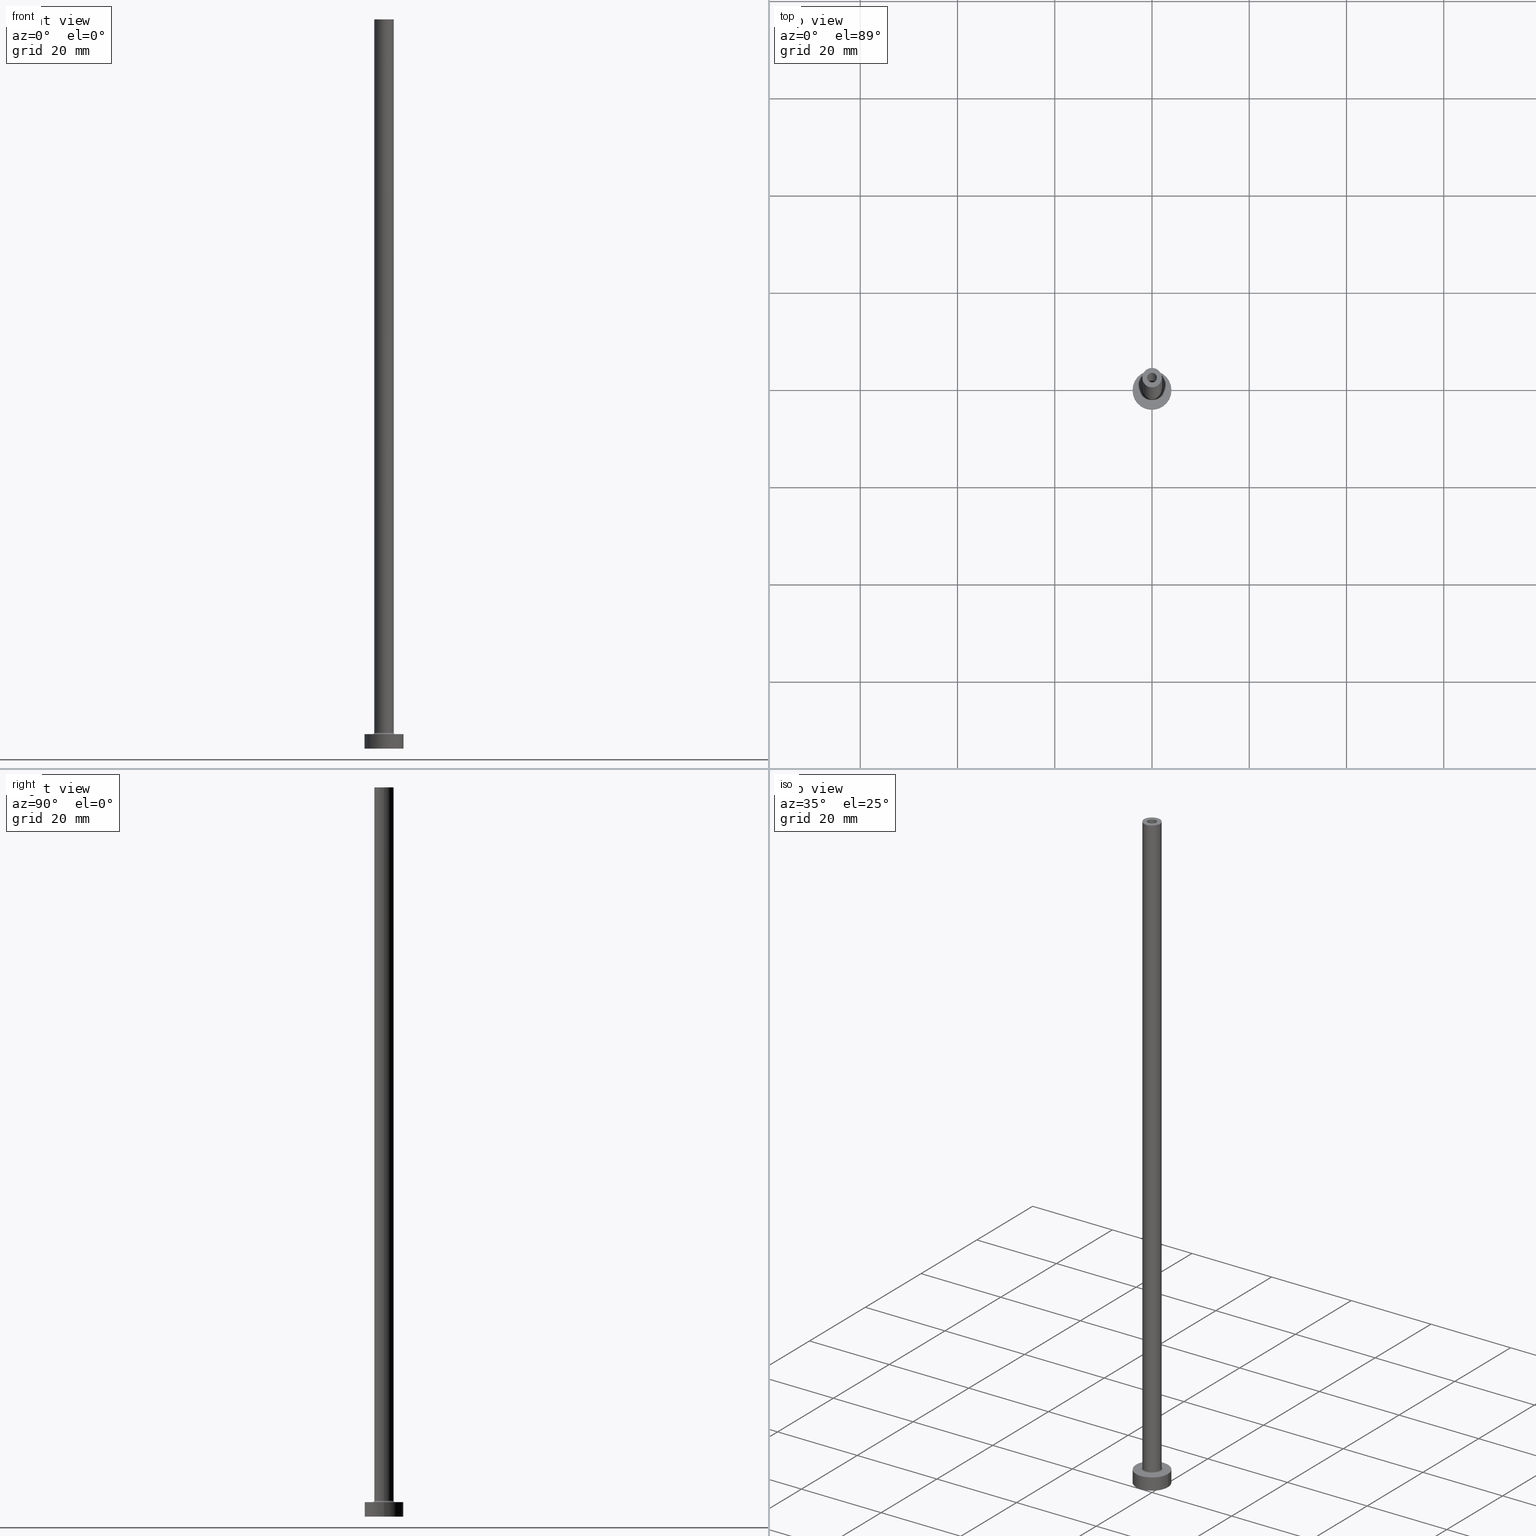
[diagram: canonical four-view strip — front | top / right | iso, engineering-drawing reading convention]
A machine part, canonical four-view strip (front | top / right | iso — engineering-drawing reading convention). The complete STEP part file that produces these views, byte-faithful:
ISO-10303-21;
HEADER;
FILE_DESCRIPTION (( 'STEP AP203' ),
    '1' );
FILE_NAME ('a53a.STEP',
    '2023-02-13T18:18:25',
    ( '' ),
    ( '' ),
    'SwSTEP 2.0',
    'SolidWorks 2019',
    '' );
FILE_SCHEMA (( 'CONFIG_CONTROL_DESIGN' ));
ENDSEC;

DATA;
#1 = TOROIDAL_SURFACE ( 'NONE', #106, 2.299999999999999822, 0.2999999999999999889 ) ;
#2 = CARTESIAN_POINT ( 'NONE',  ( -1.149999999999999911, 0.000000000000000000, 0.000000000000000000 ) ) ;
#3 = EDGE_CURVE ( 'NONE', #280, #333, #257, .T. ) ;
#4 = DIRECTION ( 'NONE',  ( 1.000000000000000000, 0.000000000000000000, 0.000000000000000000 ) ) ;
#5 = CARTESIAN_POINT ( 'NONE',  ( 0.000000000000000000, 0.000000000000000000, 118.2526911934581051 ) ) ;
#6 = CARTESIAN_POINT ( 'NONE',  ( 0.000000000000000000, 0.000000000000000000, 114.9999999999999858 ) ) ;
#7 = CIRCLE ( 'NONE', #326, 2.000000000000000000 ) ;
#8 = EDGE_CURVE ( 'NONE', #303, #279, #18, .T. ) ;
#9 = DIRECTION ( 'NONE',  ( -1.000000000000000000, 0.000000000000000000, 0.000000000000000000 ) ) ;
#10 = DIRECTION ( 'NONE',  ( -1.000000000000000000, 1.224646799147353207E-16, 0.000000000000000000 ) ) ;
#11 = EDGE_LOOP ( 'NONE', ( #33, #436, #265, #268 ) ) ;
#12 = COORDINATED_UNIVERSAL_TIME_OFFSET ( 1, 0, .AHEAD. ) ;
#13 = EDGE_CURVE ( 'NONE', #308, #143, #189, .T. ) ;
#14 = ORGANIZATION ( 'NEUR�EN�', 'NEUR�EN�', '' ) ;
#15 = FACE_BOUND ( 'NONE', #233, .T. ) ;
#16 = LOCAL_TIME ( 19, 18, 25.00000000000000000, #379 ) ;
#17 = ORIENTED_EDGE ( 'NONE', *, *, #283, .F. ) ;
#18 = CIRCLE ( 'NONE', #117, 2.000000000000000000 ) ;
#19 = PERSON_AND_ORGANIZATION ( #366, #14 ) ;
#20 = CARTESIAN_POINT ( 'NONE',  ( 0.000000000000000000, 0.000000000000000000, 0.000000000000000000 ) ) ;
#21 = ORIENTED_EDGE ( 'NONE', *, *, #400, .F. ) ;
#22 = COORDINATED_UNIVERSAL_TIME_OFFSET ( 1, 0, .AHEAD. ) ;
#23 = CARTESIAN_POINT ( 'NONE',  ( -4.000000000000000000, 0.000000000000000000, 3.000000000000000000 ) ) ;
#24 = ORIENTED_EDGE ( 'NONE', *, *, #357, .T. ) ;
#25 = PERSON_AND_ORGANIZATION ( #366, #14 ) ;
#26 = CARTESIAN_POINT ( 'NONE',  ( 0.000000000000000000, 0.000000000000000000, 0.000000000000000000 ) ) ;
#27 = ORIENTED_EDGE ( 'NONE', *, *, #13, .T. ) ;
#28 = LOCAL_TIME ( 19, 18, 25.00000000000000000, #98 ) ;
#29 = AXIS2_PLACEMENT_3D ( 'NONE', #362, #62, #410 ) ;
#30 = EDGE_CURVE ( 'NONE', #337, #182, #335, .T. ) ;
#31 = PLANE ( 'NONE',  #116 ) ;
#32 = ORIENTED_EDGE ( 'NONE', *, *, #249, .T. ) ;
#33 = ORIENTED_EDGE ( 'NONE', *, *, #228, .F. ) ;
#34 = FACE_OUTER_BOUND ( 'NONE', #416, .T. ) ;
#35 = ADVANCED_FACE ( 'NONE', ( #69 ), #277, .F. ) ;
#36 = CARTESIAN_POINT ( 'NONE',  ( 0.000000000000000000, 0.000000000000000000, 150.0000000000000000 ) ) ;
#37 = VECTOR ( 'NONE', #84, 1000.000000000000000 ) ;
#38 = ORIENTED_EDGE ( 'NONE', *, *, #255, .T. ) ;
#39 = CC_DESIGN_PERSON_AND_ORGANIZATION_ASSIGNMENT ( #19, #408, ( #305 ) ) ;
#40 = CARTESIAN_POINT ( 'NONE',  ( 4.000000000000000000, 4.898587196589412829E-16, 3.000000000000000000 ) ) ;
#41 = LINE ( 'NONE', #435, #37 ) ;
#42 = ADVANCED_FACE ( 'NONE', ( #458, #139 ), #104, .F. ) ;
#43 = APPROVAL_PERSON_ORGANIZATION ( #192, #373, #132 ) ;
#44 =( LENGTH_UNIT ( ) NAMED_UNIT ( * ) SI_UNIT ( .MILLI., .METRE. ) );
#45 = DIRECTION ( 'NONE',  ( 0.000000000000000000, 0.000000000000000000, 1.000000000000000000 ) ) ;
#46 = DIRECTION ( 'NONE',  ( -0.000000000000000000, -0.000000000000000000, -1.000000000000000000 ) ) ;
#47 = DIRECTION ( 'NONE',  ( 0.000000000000000000, 0.000000000000000000, 1.000000000000000000 ) ) ;
#48 = ADVANCED_FACE ( 'NONE', ( #114 ), #394, .F. ) ;
#49 = DIRECTION ( 'NONE',  ( 1.000000000000000000, 0.000000000000000000, 0.000000000000000000 ) ) ;
#50 = AXIS2_PLACEMENT_3D ( 'NONE', #327, #441, #9 ) ;
#51 = CARTESIAN_POINT ( 'NONE',  ( 4.000000000000000000, 4.898587196589412829E-16, 3.000000000000000000 ) ) ;
#52 = EDGE_LOOP ( 'NONE', ( #451, #241, #137, #134 ) ) ;
#53 = CARTESIAN_POINT ( 'NONE',  ( 0.000000000000000000, 0.000000000000000000, 3.000000000000000000 ) ) ;
#54 = EDGE_LOOP ( 'NONE', ( #447, #164, #27, #168 ) ) ;
#55 = PERSON_AND_ORGANIZATION ( #366, #14 ) ;
#56 = EDGE_CURVE ( 'NONE', #337, #88, #41, .T. ) ;
#57 = PERSON_AND_ORGANIZATION_ROLE ( 'design_owner' ) ;
#58 = AXIS2_PLACEMENT_3D ( 'NONE', #53, #360, #197 ) ;
#59 = DIRECTION ( 'NONE',  ( 0.000000000000000000, 0.000000000000000000, 1.000000000000000000 ) ) ;
#60 = ORIENTED_EDGE ( 'NONE', *, *, #224, .T. ) ;
#61 = AXIS2_PLACEMENT_3D ( 'NONE', #5, #352, #77 ) ;
#62 = DIRECTION ( 'NONE',  ( 0.000000000000000000, 0.000000000000000000, 1.000000000000000000 ) ) ;
#63 = ORIENTED_EDGE ( 'NONE', *, *, #72, .T. ) ;
#64 = DIRECTION ( 'NONE',  ( 0.000000000000000000, 0.000000000000000000, 1.000000000000000000 ) ) ;
#65 = ORIENTED_EDGE ( 'NONE', *, *, #283, .T. ) ;
#66 = EDGE_CURVE ( 'NONE', #279, #96, #81, .T. ) ;
#67 = CALENDAR_DATE ( 2023, 13, 2 ) ;
#68 = CYLINDRICAL_SURFACE ( 'NONE', #448, 2.000000000000000000 ) ;
#69 = FACE_OUTER_BOUND ( 'NONE', #11, .T. ) ;
#70 = AXIS2_PLACEMENT_3D ( 'NONE', #292, #302, #336 ) ;
#71 = EDGE_LOOP ( 'NONE', ( #386, #24, #250, #272 ) ) ;
#72 = EDGE_CURVE ( 'NONE', #131, #140, #247, .T. ) ;
#73 = PRODUCT_DEFINITION_SHAPE ( 'NONE', 'NONE',  #459 ) ;
#74 = CC_DESIGN_PERSON_AND_ORGANIZATION_ASSIGNMENT ( #25, #263, ( #320 ) ) ;
#75 = DIRECTION ( 'NONE',  ( 0.000000000000000000, 0.000000000000000000, 1.000000000000000000 ) ) ;
#76 = ORIENTED_EDGE ( 'NONE', *, *, #319, .T. ) ;
#77 = DIRECTION ( 'NONE',  ( -1.000000000000000000, 0.000000000000000000, 0.000000000000000000 ) ) ;
#78 = DIRECTION ( 'NONE',  ( 0.000000000000000000, 0.000000000000000000, 1.000000000000000000 ) ) ;
#79 = EDGE_CURVE ( 'NONE', #88, #411, #152, .T. ) ;
#80 = DIRECTION ( 'NONE',  ( 1.000000000000000000, 0.000000000000000000, 0.000000000000000000 ) ) ;
#81 = CIRCLE ( 'NONE', #270, 0.2999999999999999334 ) ;
#82 = DIRECTION ( 'NONE',  ( 1.000000000000000000, 0.000000000000000000, 0.000000000000000000 ) ) ;
#83 = CC_DESIGN_PERSON_AND_ORGANIZATION_ASSIGNMENT ( #312, #57, ( #242 ) ) ;
#84 = DIRECTION ( 'NONE',  ( 0.000000000000000000, 0.000000000000000000, -1.000000000000000000 ) ) ;
#85 = DIRECTION ( 'NONE',  ( -0.000000000000000000, -0.000000000000000000, -1.000000000000000000 ) ) ;
#86 = CC_DESIGN_APPROVAL ( #396, ( #305 ) ) ;
#87 = CARTESIAN_POINT ( 'NONE',  ( 0.000000000000000000, 0.000000000000000000, 3.000000000000000000 ) ) ;
#88 = VERTEX_POINT ( 'NONE', #391 ) ;
#89 = FACE_OUTER_BOUND ( 'NONE', #54, .T. ) ;
#90 = EDGE_LOOP ( 'NONE', ( #142, #93, #346, #440 ) ) ;
#91 = EDGE_CURVE ( 'NONE', #411, #88, #97, .T. ) ;
#92 = CARTESIAN_POINT ( 'NONE',  ( 0.000000000000000000, 0.000000000000000000, 3.000000000000000000 ) ) ;
#93 = ORIENTED_EDGE ( 'NONE', *, *, #255, .F. ) ;
#94 = SHAPE_DEFINITION_REPRESENTATION ( #73, #309 ) ;
#95 = CIRCLE ( 'NONE', #371, 4.000000000000000000 ) ;
#96 = VERTEX_POINT ( 'NONE', #256 ) ;
#97 = CIRCLE ( 'NONE', #344, 1.000000000000000000 ) ;
#98 = COORDINATED_UNIVERSAL_TIME_OFFSET ( 1, 0, .AHEAD. ) ;
#99 = COORDINATED_UNIVERSAL_TIME_OFFSET ( 1, 0, .AHEAD. ) ;
#100 = CARTESIAN_POINT ( 'NONE',  ( -1.000000000000000000, 0.000000000000000000, 114.9999999999999858 ) ) ;
#101 = EDGE_LOOP ( 'NONE', ( #274, #339, #158, #213 ) ) ;
#102 = DIRECTION ( 'NONE',  ( 0.000000000000000000, 0.000000000000000000, 1.000000000000000000 ) ) ;
#103 = CARTESIAN_POINT ( 'NONE',  ( -1.000000000000000000, 0.000000000000000000, 150.0000000000000000 ) ) ;
#104 = PLANE ( 'NONE',  #361 ) ;
#105 = EDGE_CURVE ( 'NONE', #348, #367, #217, .T. ) ;
#106 = AXIS2_PLACEMENT_3D ( 'NONE', #193, #47, #4 ) ;
#107 = EDGE_LOOP ( 'NONE', ( #423, #300 ) ) ;
#108 = APPLICATION_CONTEXT ( 'configuration controlled 3d designs of mechanical parts and assemblies' ) ;
#109 = CC_DESIGN_PERSON_AND_ORGANIZATION_ASSIGNMENT ( #341, #170, ( #320 ) ) ;
#110 = CARTESIAN_POINT ( 'NONE',  ( 0.000000000000000000, 0.000000000000000000, 150.0000000000000000 ) ) ;
#111 = ORIENTED_EDGE ( 'NONE', *, *, #91, .F. ) ;
#112 = AXIS2_PLACEMENT_3D ( 'NONE', #87, #231, #406 ) ;
#113 = DIRECTION ( 'NONE',  ( 0.000000000000000000, 0.000000000000000000, -1.000000000000000000 ) ) ;
#114 = FACE_OUTER_BOUND ( 'NONE', #172, .T. ) ;
#115 = ADVANCED_FACE ( 'NONE', ( #220, #322 ), #226, .T. ) ;
#116 = AXIS2_PLACEMENT_3D ( 'NONE', #342, #64, #180 ) ;
#117 = AXIS2_PLACEMENT_3D ( 'NONE', #428, #102, #317 ) ;
#118 = DIRECTION ( 'NONE',  ( 1.000000000000000000, 0.000000000000000000, -0.000000000000000000 ) ) ;
#119 = APPROVAL ( #330, 'NEUR�EN�' ) ;
#120 = DIRECTION ( 'NONE',  ( 1.000000000000000000, 0.000000000000000000, 0.000000000000000000 ) ) ;
#121 = LINE ( 'NONE', #23, #195 ) ;
#122 = ORIENTED_EDGE ( 'NONE', *, *, #304, .T. ) ;
#123 = DIRECTION ( 'NONE',  ( 1.000000000000000000, 0.000000000000000000, -0.000000000000000000 ) ) ;
#124 = AXIS2_PLACEMENT_3D ( 'NONE', #36, #185, #426 ) ;
#125 = EDGE_CURVE ( 'NONE', #236, #155, #421, .T. ) ;
#126 = ORIENTED_EDGE ( 'NONE', *, *, #389, .F. ) ;
#127 = DATE_TIME_ROLE ( 'classification_date' ) ;
#128 = DIRECTION ( 'NONE',  ( 1.000000000000000000, 0.000000000000000000, 0.000000000000000000 ) ) ;
#129 = ORIENTED_EDGE ( 'NONE', *, *, #72, .F. ) ;
#130 = CARTESIAN_POINT ( 'NONE',  ( -2.000000000000000000, 0.000000000000000000, 3.299999999999997158 ) ) ;
#131 = VERTEX_POINT ( 'NONE', #40 ) ;
#132 = APPROVAL_ROLE ( '' ) ;
#133 = CARTESIAN_POINT ( 'NONE',  ( 2.000000000000000000, 2.449293598294706414E-16, 150.0000000000000000 ) ) ;
#134 = ORIENTED_EDGE ( 'NONE', *, *, #8, .T. ) ;
#135 = APPROVAL_DATE_TIME ( #209, #373 ) ;
#136 = DIRECTION ( 'NONE',  ( 1.000000000000000000, 0.000000000000000000, 0.000000000000000000 ) ) ;
#137 = ORIENTED_EDGE ( 'NONE', *, *, #409, .T. ) ;
#138 = FACE_OUTER_BOUND ( 'NONE', #276, .T. ) ;
#139 = FACE_OUTER_BOUND ( 'NONE', #208, .T. ) ;
#140 = VERTEX_POINT ( 'NONE', #153 ) ;
#141 = CARTESIAN_POINT ( 'NONE',  ( 0.000000000000000000, 0.000000000000000000, 118.2526911934581051 ) ) ;
#142 = ORIENTED_EDGE ( 'NONE', *, *, #259, .F. ) ;
#143 = VERTEX_POINT ( 'NONE', #2 ) ;
#144 = CC_DESIGN_DATE_AND_TIME_ASSIGNMENT ( #442, #198, ( #459 ) ) ;
#145 = DIRECTION ( 'NONE',  ( 0.000000000000000000, 0.000000000000000000, 1.000000000000000000 ) ) ;
#146 = CIRCLE ( 'NONE', #223, 1.149999999999999911 ) ;
#147 = DIRECTION ( 'NONE',  ( -1.000000000000000000, 0.000000000000000000, 0.000000000000000000 ) ) ;
#148 = DIRECTION ( 'NONE',  ( 0.000000000000000000, 0.000000000000000000, 1.000000000000000000 ) ) ;
#149 = ADVANCED_FACE ( 'NONE', ( #225 ), #1, .F. ) ;
#150 = CARTESIAN_POINT ( 'NONE',  ( 0.000000000000000000, 0.000000000000000000, 0.000000000000000000 ) ) ;
#151 = VECTOR ( 'NONE', #262, 1000.000000000000000 ) ;
#152 = CIRCLE ( 'NONE', #184, 1.000000000000000000 ) ;
#153 = CARTESIAN_POINT ( 'NONE',  ( -4.000000000000000000, 0.000000000000000000, 3.000000000000000000 ) ) ;
#154 = FACE_OUTER_BOUND ( 'NONE', #200, .T. ) ;
#155 = VERTEX_POINT ( 'NONE', #359 ) ;
#156 = EDGE_CURVE ( 'NONE', #279, #303, #7, .T. ) ;
#157 = DIRECTION ( 'NONE',  ( 1.000000000000000000, 0.000000000000000000, 0.000000000000000000 ) ) ;
#158 = ORIENTED_EDGE ( 'NONE', *, *, #304, .F. ) ;
#159 = CALENDAR_DATE ( 2023, 13, 2 ) ;
#160 = AXIS2_PLACEMENT_3D ( 'NONE', #218, #78, #432 ) ;
#161 = AXIS2_PLACEMENT_3D ( 'NONE', #20, #295, #128 ) ;
#162 = DIRECTION ( 'NONE',  ( 1.000000000000000000, 0.000000000000000000, 0.000000000000000000 ) ) ;
#163 = AXIS2_PLACEMENT_3D ( 'NONE', #398, #59, #162 ) ;
#164 = ORIENTED_EDGE ( 'NONE', *, *, #389, .T. ) ;
#165 = APPROVAL_STATUS ( 'not_yet_approved' ) ;
#166 = APPLICATION_PROTOCOL_DEFINITION ( 'international standard', 'config_control_design', 1994, #108 ) ;
#167 = CYLINDRICAL_SURFACE ( 'NONE', #112, 4.000000000000000000 ) ;
#168 = ORIENTED_EDGE ( 'NONE', *, *, #331, .F. ) ;
#169 = ADVANCED_FACE ( 'NONE', ( #430 ), #187, .T. ) ;
#170 = PERSON_AND_ORGANIZATION_ROLE ( 'creator' ) ;
#171 = CARTESIAN_POINT ( 'NONE',  ( 0.000000000000000000, 0.000000000000000000, 0.000000000000000000 ) ) ;
#172 = EDGE_LOOP ( 'NONE', ( #126, #65, #455, #60 ) ) ;
#173 = DATE_AND_TIME ( #159, #222 ) ;
#174 = VECTOR ( 'NONE', #457, 1000.000000000000000 ) ;
#175 = CARTESIAN_POINT ( 'NONE',  ( -2.299999999999999822, 2.816687638038912056E-16, 2.999999999999998668 ) ) ;
#176 = EDGE_LOOP ( 'NONE', ( #122, #76 ) ) ;
#177 = CIRCLE ( 'NONE', #163, 2.000000000000000000 ) ;
#178 = DIRECTION ( 'NONE',  ( -0.000000000000000000, -0.000000000000000000, -1.000000000000000000 ) ) ;
#179 = ORIENTED_EDGE ( 'NONE', *, *, #79, .F. ) ;
#180 = DIRECTION ( 'NONE',  ( 1.000000000000000000, 0.000000000000000000, -0.000000000000000000 ) ) ;
#181 = LOCAL_TIME ( 19, 18, 25.00000000000000000, #99 ) ;
#182 = VERTEX_POINT ( 'NONE', #284 ) ;
#183 = MANIFOLD_SOLID_BREP ( 'Odebrat vysunut�m4', #395 ) ;
#184 = AXIS2_PLACEMENT_3D ( 'NONE', #6, #45, #80 ) ;
#185 = DIRECTION ( 'NONE',  ( 0.000000000000000000, 0.000000000000000000, 1.000000000000000000 ) ) ;
#186 = CC_DESIGN_PERSON_AND_ORGANIZATION_ASSIGNMENT ( #364, #445, ( #459 ) ) ;
#187 = CYLINDRICAL_SURFACE ( 'NONE', #381, 4.000000000000000000 ) ;
#188 = CARTESIAN_POINT ( 'NONE',  ( 0.000000000000000000, 0.000000000000000000, 114.9999999999999858 ) ) ;
#189 = CIRCLE ( 'NONE', #456, 1.149999999999999911 ) ;
#190 = ADVANCED_FACE ( 'NONE', ( #358 ), #191, .F. ) ;
#191 = CYLINDRICAL_SURFACE ( 'NONE', #402, 1.000000000000000000 ) ;
#192 = PERSON_AND_ORGANIZATION ( #366, #14 ) ;
#193 = CARTESIAN_POINT ( 'NONE',  ( 0.000000000000000000, 0.000000000000000000, 3.299999999999997158 ) ) ;
#194 = VECTOR ( 'NONE', #207, 1000.000000000000000 ) ;
#195 = VECTOR ( 'NONE', #296, 1000.000000000000000 ) ;
#196 = DIRECTION ( 'NONE',  ( -0.000000000000000000, -0.000000000000000000, -1.000000000000000000 ) ) ;
#197 = DIRECTION ( 'NONE',  ( 1.000000000000000000, 0.000000000000000000, 0.000000000000000000 ) ) ;
#198 = DATE_TIME_ROLE ( 'creation_date' ) ;
#199 = DIRECTION ( 'NONE',  ( -0.000000000000000000, -0.000000000000000000, -1.000000000000000000 ) ) ;
#200 = EDGE_LOOP ( 'NONE', ( #291, #370 ) ) ;
#201 = AXIS2_PLACEMENT_3D ( 'NONE', #251, #113, #318 ) ;
#202 = EDGE_CURVE ( 'NONE', #140, #155, #121, .T. ) ;
#203 = CARTESIAN_POINT ( 'NONE',  ( 2.000000000000000000, 2.449293598294706414E-16, 150.0000000000000000 ) ) ;
#204 = CARTESIAN_POINT ( 'NONE',  ( 0.000000000000000000, 0.000000000000000000, 150.0000000000000000 ) ) ;
#205 = PRODUCT_RELATED_PRODUCT_CATEGORY ( 'detail', '', ( #242 ) ) ;
#206 = ORIENTED_EDGE ( 'NONE', *, *, #105, .F. ) ;
#207 = DIRECTION ( 'NONE',  ( -0.000000000000000000, -0.000000000000000000, -1.000000000000000000 ) ) ;
#208 = EDGE_LOOP ( 'NONE', ( #21, #407 ) ) ;
#209 = DATE_AND_TIME ( #334, #181 ) ;
#210 = LOCAL_TIME ( 19, 18, 25.00000000000000000, #22 ) ;
#211 = ORIENTED_EDGE ( 'NONE', *, *, #427, .T. ) ;
#212 = VECTOR ( 'NONE', #199, 1000.000000000000000 ) ;
#213 = ORIENTED_EDGE ( 'NONE', *, *, #66, .F. ) ;
#214 = ORIENTED_EDGE ( 'NONE', *, *, #30, .T. ) ;
#215 = CARTESIAN_POINT ( 'NONE',  ( 1.149999999999999911, 1.408343819019456028E-16, 114.9999999999999858 ) ) ;
#216 = ORIENTED_EDGE ( 'NONE', *, *, #259, .T. ) ;
#217 = CIRCLE ( 'NONE', #351, 1.149999999999999911 ) ;
#218 = CARTESIAN_POINT ( 'NONE',  ( 0.000000000000000000, 0.000000000000000000, 3.000000000000000000 ) ) ;
#219 =( NAMED_UNIT ( * ) SI_UNIT ( $, .STERADIAN. ) SOLID_ANGLE_UNIT ( ) );
#220 = FACE_BOUND ( 'NONE', #176, .T. ) ;
#221 = CIRCLE ( 'NONE', #58, 2.299999999999999822 ) ;
#222 = LOCAL_TIME ( 19, 18, 25.00000000000000000, #12 ) ;
#223 = AXIS2_PLACEMENT_3D ( 'NONE', #171, #196, #332 ) ;
#224 = EDGE_CURVE ( 'NONE', #143, #308, #146, .T. ) ;
#225 = FACE_OUTER_BOUND ( 'NONE', #101, .T. ) ;
#226 = PLANE ( 'NONE',  #160 ) ;
#227 = DIRECTION ( 'NONE',  ( 0.000000000000000000, 0.000000000000000000, 1.000000000000000000 ) ) ;
#228 = EDGE_CURVE ( 'NONE', #303, #382, #356, .T. ) ;
#229 = AXIS2_PLACEMENT_3D ( 'NONE', #141, #278, #377 ) ;
#230 = CIRCLE ( 'NONE', #29, 4.000000000000000000 ) ;
#231 = DIRECTION ( 'NONE',  ( -0.000000000000000000, -0.000000000000000000, -1.000000000000000000 ) ) ;
#232 = ORIENTED_EDGE ( 'NONE', *, *, #79, .T. ) ;
#233 = EDGE_LOOP ( 'NONE', ( #420, #378 ) ) ;
#234 = ADVANCED_FACE ( 'NONE', ( #260 ), #328, .T. ) ;
#235 = PLANE ( 'NONE',  #439 ) ;
#236 = VERTEX_POINT ( 'NONE', #443 ) ;
#237 = DATE_AND_TIME ( #67, #16 ) ;
#238 = APPLICATION_PROTOCOL_DEFINITION ( 'international standard', 'config_control_design', 1994, #434 ) ;
#239 = DIRECTION ( 'NONE',  ( 1.224646799147353207E-16, 1.000000000000000000, -0.000000000000000000 ) ) ;
#240 = AXIS2_PLACEMENT_3D ( 'NONE', #110, #380, #248 ) ;
#241 = ORIENTED_EDGE ( 'NONE', *, *, #3, .F. ) ;
#242 = PRODUCT ( 'a53a', 'a53a', '', ( #437 ) ) ;
#243 = CARTESIAN_POINT ( 'NONE',  ( 0.000000000000000000, 0.000000000000000000, 0.000000000000000000 ) ) ;
#244 = EDGE_CURVE ( 'NONE', #333, #280, #177, .T. ) ;
#245 =( GEOMETRIC_REPRESENTATION_CONTEXT ( 3 ) GLOBAL_UNCERTAINTY_ASSIGNED_CONTEXT ( ( #388 ) ) GLOBAL_UNIT_ASSIGNED_CONTEXT ( ( #44, #253, #219 ) ) REPRESENTATION_CONTEXT ( 'NONE', 'WORKASPACE' ) );
#246 = CARTESIAN_POINT ( 'NONE',  ( 0.000000000000000000, 0.000000000000000000, 0.000000000000000000 ) ) ;
#247 = CIRCLE ( 'NONE', #288, 4.000000000000000000 ) ;
#248 = DIRECTION ( 'NONE',  ( 1.000000000000000000, 0.000000000000000000, 0.000000000000000000 ) ) ;
#249 = EDGE_CURVE ( 'NONE', #182, #337, #306, .T. ) ;
#250 = ORIENTED_EDGE ( 'NONE', *, *, #156, .T. ) ;
#251 = CARTESIAN_POINT ( 'NONE',  ( 0.000000000000000000, 0.000000000000000000, 150.0000000000000000 ) ) ;
#252 = DIRECTION ( 'NONE',  ( 0.000000000000000000, 0.000000000000000000, 1.000000000000000000 ) ) ;
#253 =( NAMED_UNIT ( * ) PLANE_ANGLE_UNIT ( ) SI_UNIT ( $, .RADIAN. ) );
#254 = CARTESIAN_POINT ( 'NONE',  ( 0.000000000000000000, 0.000000000000000000, 3.000000000000000000 ) ) ;
#255 = EDGE_CURVE ( 'NONE', #140, #131, #230, .T. ) ;
#256 = CARTESIAN_POINT ( 'NONE',  ( 2.299999999999999822, 0.000000000000000000, 2.999999999999998668 ) ) ;
#257 = CIRCLE ( 'NONE', #124, 2.000000000000000000 ) ;
#258 = DIRECTION ( 'NONE',  ( 0.000000000000000000, 0.000000000000000000, 1.000000000000000000 ) ) ;
#259 = EDGE_CURVE ( 'NONE', #131, #236, #365, .T. ) ;
#260 = FACE_OUTER_BOUND ( 'NONE', #71, .T. ) ;
#261 = CIRCLE ( 'NONE', #70, 1.149999999999999911 ) ;
#262 = DIRECTION ( 'NONE',  ( 0.000000000000000000, 0.000000000000000000, -1.000000000000000000 ) ) ;
#263 = PERSON_AND_ORGANIZATION_ROLE ( 'design_supplier' ) ;
#264 = FACE_OUTER_BOUND ( 'NONE', #329, .T. ) ;
#265 = ORIENTED_EDGE ( 'NONE', *, *, #66, .T. ) ;
#266 = PERSON_AND_ORGANIZATION ( #366, #14 ) ;
#267 = CYLINDRICAL_SURFACE ( 'NONE', #229, 1.149999999999999911 ) ;
#268 = ORIENTED_EDGE ( 'NONE', *, *, #319, .F. ) ;
#269 = DATE_AND_TIME ( #294, #28 ) ;
#270 = AXIS2_PLACEMENT_3D ( 'NONE', #431, #353, #285 ) ;
#271 = SECURITY_CLASSIFICATION_LEVEL ( 'unclassified' ) ;
#272 = ORIENTED_EDGE ( 'NONE', *, *, #409, .F. ) ;
#273 = CYLINDRICAL_SURFACE ( 'NONE', #201, 1.000000000000000000 ) ;
#274 = ORIENTED_EDGE ( 'NONE', *, *, #8, .F. ) ;
#275 = CC_DESIGN_SECURITY_CLASSIFICATION ( #305, ( #320 ) ) ;
#276 = EDGE_LOOP ( 'NONE', ( #32, #298, #111, #418 ) ) ;
#277 = TOROIDAL_SURFACE ( 'NONE', #372, 2.299999999999999822, 0.2999999999999999889 ) ;
#278 = DIRECTION ( 'NONE',  ( 0.000000000000000000, 0.000000000000000000, -1.000000000000000000 ) ) ;
#279 = VERTEX_POINT ( 'NONE', #399 ) ;
#280 = VERTEX_POINT ( 'NONE', #290 ) ;
#281 = APPROVAL_PERSON_ORGANIZATION ( #266, #396, #376 ) ;
#282 = CARTESIAN_POINT ( 'NONE',  ( 0.000000000000000000, 0.000000000000000000, 3.299999999999997158 ) ) ;
#283 = EDGE_CURVE ( 'NONE', #367, #348, #261, .T. ) ;
#284 = CARTESIAN_POINT ( 'NONE',  ( -1.000000000000000000, 0.000000000000000000, 150.0000000000000000 ) ) ;
#285 = DIRECTION ( 'NONE',  ( 0.000000000000000000, 0.000000000000000000, -1.000000000000000000 ) ) ;
#286 = DIRECTION ( 'NONE',  ( 1.000000000000000000, 0.000000000000000000, 0.000000000000000000 ) ) ;
#287 = CC_DESIGN_APPROVAL ( #119, ( #320 ) ) ;
#288 = AXIS2_PLACEMENT_3D ( 'NONE', #254, #258, #120 ) ;
#289 = DIRECTION ( 'NONE',  ( -1.000000000000000000, 0.000000000000000000, 0.000000000000000000 ) ) ;
#290 = CARTESIAN_POINT ( 'NONE',  ( -2.000000000000000000, 0.000000000000000000, 150.0000000000000000 ) ) ;
#291 = ORIENTED_EDGE ( 'NONE', *, *, #3, .T. ) ;
#292 = CARTESIAN_POINT ( 'NONE',  ( 0.000000000000000000, 0.000000000000000000, 114.9999999999999858 ) ) ;
#293 = CC_DESIGN_APPROVAL ( #373, ( #459 ) ) ;
#294 = CALENDAR_DATE ( 2023, 13, 2 ) ;
#295 = DIRECTION ( 'NONE',  ( 0.000000000000000000, 0.000000000000000000, 1.000000000000000000 ) ) ;
#296 = DIRECTION ( 'NONE',  ( -0.000000000000000000, -0.000000000000000000, -1.000000000000000000 ) ) ;
#297 = ADVANCED_FACE ( 'NONE', ( #264 ), #167, .T. ) ;
#298 = ORIENTED_EDGE ( 'NONE', *, *, #56, .T. ) ;
#299 = CARTESIAN_POINT ( 'NONE',  ( -1.149999999999999911, 0.000000000000000000, 118.2526911934581051 ) ) ;
#300 = ORIENTED_EDGE ( 'NONE', *, *, #13, .F. ) ;
#301 = APPROVAL_DATE_TIME ( #173, #119 ) ;
#302 = DIRECTION ( 'NONE',  ( 0.000000000000000000, 0.000000000000000000, 1.000000000000000000 ) ) ;
#303 = VERTEX_POINT ( 'NONE', #130 ) ;
#304 = EDGE_CURVE ( 'NONE', #96, #382, #221, .T. ) ;
#305 = SECURITY_CLASSIFICATION ( '', '', #271 ) ;
#306 = CIRCLE ( 'NONE', #429, 1.000000000000000000 ) ;
#307 = LINE ( 'NONE', #133, #194 ) ;
#308 = VERTEX_POINT ( 'NONE', #446 ) ;
#309 = ADVANCED_BREP_SHAPE_REPRESENTATION ( 'a53a', ( #183, #161 ), #245 ) ;
#310 = LINE ( 'NONE', #103, #354 ) ;
#311 = DIRECTION ( 'NONE',  ( 0.000000000000000000, 0.000000000000000000, 1.000000000000000000 ) ) ;
#312 = PERSON_AND_ORGANIZATION ( #366, #14 ) ;
#313 = CIRCLE ( 'NONE', #387, 2.299999999999999822 ) ;
#314 = LINE ( 'NONE', #349, #412 ) ;
#315 = DIRECTION ( 'NONE',  ( 1.000000000000000000, 0.000000000000000000, 0.000000000000000000 ) ) ;
#316 = CARTESIAN_POINT ( 'NONE',  ( 1.149999999999999911, 1.408343819019456028E-16, 118.2526911934581051 ) ) ;
#317 = DIRECTION ( 'NONE',  ( 1.000000000000000000, 0.000000000000000000, 0.000000000000000000 ) ) ;
#318 = DIRECTION ( 'NONE',  ( -1.000000000000000000, 0.000000000000000000, 0.000000000000000000 ) ) ;
#319 = EDGE_CURVE ( 'NONE', #382, #96, #313, .T. ) ;
#320 = PRODUCT_DEFINITION_FORMATION_WITH_SPECIFIED_SOURCE ( 'LIBOVOLN�', '', #242, .NOT_KNOWN. ) ;
#321 = DIRECTION ( 'NONE',  ( 1.000000000000000000, 0.000000000000000000, 0.000000000000000000 ) ) ;
#322 = FACE_OUTER_BOUND ( 'NONE', #363, .T. ) ;
#323 = CARTESIAN_POINT ( 'NONE',  ( 0.000000000000000000, 0.000000000000000000, 150.0000000000000000 ) ) ;
#324 = ADVANCED_FACE ( 'NONE', ( #15, #154 ), #235, .T. ) ;
#325 = APPROVAL_STATUS ( 'not_yet_approved' ) ;
#326 = AXIS2_PLACEMENT_3D ( 'NONE', #282, #148, #286 ) ;
#327 = CARTESIAN_POINT ( 'NONE',  ( 0.000000000000000000, 0.000000000000000000, 150.0000000000000000 ) ) ;
#328 = CYLINDRICAL_SURFACE ( 'NONE', #50, 2.000000000000000000 ) ;
#329 = EDGE_LOOP ( 'NONE', ( #129, #216, #404, #343 ) ) ;
#330 = APPROVAL_STATUS ( 'not_yet_approved' ) ;
#331 = EDGE_CURVE ( 'NONE', #348, #143, #369, .T. ) ;
#332 = DIRECTION ( 'NONE',  ( 1.000000000000000000, 0.000000000000000000, 0.000000000000000000 ) ) ;
#333 = VERTEX_POINT ( 'NONE', #203 ) ;
#334 = CALENDAR_DATE ( 2023, 13, 2 ) ;
#335 = CIRCLE ( 'NONE', #240, 1.000000000000000000 ) ;
#336 = DIRECTION ( 'NONE',  ( 1.000000000000000000, 0.000000000000000000, 0.000000000000000000 ) ) ;
#337 = VERTEX_POINT ( 'NONE', #403 ) ;
#338 = CARTESIAN_POINT ( 'NONE',  ( -2.299999999999999822, 2.816687638038912056E-16, 3.299999999999997158 ) ) ;
#339 = ORIENTED_EDGE ( 'NONE', *, *, #228, .T. ) ;
#340 = ADVANCED_FACE ( 'NONE', ( #89 ), #267, .F. ) ;
#341 = PERSON_AND_ORGANIZATION ( #366, #14 ) ;
#342 = CARTESIAN_POINT ( 'NONE',  ( 0.000000000000000000, 0.000000000000000000, 114.9999999999999858 ) ) ;
#343 = ORIENTED_EDGE ( 'NONE', *, *, #202, .F. ) ;
#344 = AXIS2_PLACEMENT_3D ( 'NONE', #188, #390, #355 ) ;
#345 = CARTESIAN_POINT ( 'NONE',  ( 0.000000000000000000, 0.000000000000000000, 3.299999999999997158 ) ) ;
#346 = ORIENTED_EDGE ( 'NONE', *, *, #202, .T. ) ;
#347 = DIRECTION ( 'NONE',  ( -1.000000000000000000, 0.000000000000000000, 0.000000000000000000 ) ) ;
#348 = VERTEX_POINT ( 'NONE', #425 ) ;
#349 = CARTESIAN_POINT ( 'NONE',  ( -2.000000000000000000, 0.000000000000000000, 150.0000000000000000 ) ) ;
#350 = EDGE_LOOP ( 'NONE', ( #444, #214, #211, #179 ) ) ;
#351 = AXIS2_PLACEMENT_3D ( 'NONE', #397, #392, #321 ) ;
#352 = DIRECTION ( 'NONE',  ( 0.000000000000000000, 0.000000000000000000, -1.000000000000000000 ) ) ;
#353 = DIRECTION ( 'NONE',  ( 0.000000000000000000, -1.000000000000000000, 0.000000000000000000 ) ) ;
#354 = VECTOR ( 'NONE', #453, 1000.000000000000000 ) ;
#355 = DIRECTION ( 'NONE',  ( 1.000000000000000000, 0.000000000000000000, 0.000000000000000000 ) ) ;
#356 = CIRCLE ( 'NONE', #449, 0.2999999999999999334 ) ;
#357 = EDGE_CURVE ( 'NONE', #333, #279, #307, .T. ) ;
#358 = FACE_OUTER_BOUND ( 'NONE', #350, .T. ) ;
#359 = CARTESIAN_POINT ( 'NONE',  ( -4.000000000000000000, 0.000000000000000000, 0.000000000000000000 ) ) ;
#360 = DIRECTION ( 'NONE',  ( -0.000000000000000000, -0.000000000000000000, -1.000000000000000000 ) ) ;
#361 = AXIS2_PLACEMENT_3D ( 'NONE', #246, #145, #118 ) ;
#362 = CARTESIAN_POINT ( 'NONE',  ( 0.000000000000000000, 0.000000000000000000, 3.000000000000000000 ) ) ;
#363 = EDGE_LOOP ( 'NONE', ( #38, #63 ) ) ;
#364 = PERSON_AND_ORGANIZATION ( #366, #14 ) ;
#365 = LINE ( 'NONE', #51, #212 ) ;
#366 = PERSON ( 'NEUR�EN�', 'NEUR�EN�', 'NEUR�EN�', ('NEUR�EN�'), ('NEUR�EN�'), ('NEUR�EN�') ) ;
#367 = VERTEX_POINT ( 'NONE', #215 ) ;
#368 = CALENDAR_DATE ( 2023, 13, 2 ) ;
#369 = LINE ( 'NONE', #299, #151 ) ;
#370 = ORIENTED_EDGE ( 'NONE', *, *, #244, .T. ) ;
#371 = AXIS2_PLACEMENT_3D ( 'NONE', #26, #75, #136 ) ;
#372 = AXIS2_PLACEMENT_3D ( 'NONE', #345, #311, #454 ) ;
#373 = APPROVAL ( #325, 'NEUR�EN�' ) ;
#374 = CARTESIAN_POINT ( 'NONE',  ( 0.000000000000000000, 0.000000000000000000, 150.0000000000000000 ) ) ;
#375 = ORIENTED_EDGE ( 'NONE', *, *, #91, .T. ) ;
#376 = APPROVAL_ROLE ( '' ) ;
#377 = DIRECTION ( 'NONE',  ( -1.000000000000000000, 0.000000000000000000, 0.000000000000000000 ) ) ;
#378 = ORIENTED_EDGE ( 'NONE', *, *, #30, .F. ) ;
#379 = COORDINATED_UNIVERSAL_TIME_OFFSET ( 1, 0, .AHEAD. ) ;
#380 = DIRECTION ( 'NONE',  ( 0.000000000000000000, 0.000000000000000000, 1.000000000000000000 ) ) ;
#381 = AXIS2_PLACEMENT_3D ( 'NONE', #461, #46, #147 ) ;
#382 = VERTEX_POINT ( 'NONE', #175 ) ;
#383 = ADVANCED_FACE ( 'NONE', ( #385 ), #68, .T. ) ;
#384 = DIRECTION ( 'NONE',  ( -0.000000000000000000, -0.000000000000000000, -1.000000000000000000 ) ) ;
#385 = FACE_OUTER_BOUND ( 'NONE', #52, .T. ) ;
#386 = ORIENTED_EDGE ( 'NONE', *, *, #244, .F. ) ;
#387 = AXIS2_PLACEMENT_3D ( 'NONE', #92, #85, #49 ) ;
#388 = UNCERTAINTY_MEASURE_WITH_UNIT (LENGTH_MEASURE( 1.000000000000000082E-05 ), #44, 'distance_accuracy_value', 'NONE');
#389 = EDGE_CURVE ( 'NONE', #367, #308, #450, .T. ) ;
#390 = DIRECTION ( 'NONE',  ( 0.000000000000000000, 0.000000000000000000, 1.000000000000000000 ) ) ;
#391 = CARTESIAN_POINT ( 'NONE',  ( 1.000000000000000000, 1.224646799147353207E-16, 114.9999999999999858 ) ) ;
#392 = DIRECTION ( 'NONE',  ( 0.000000000000000000, 0.000000000000000000, 1.000000000000000000 ) ) ;
#393 = ADVANCED_FACE ( 'NONE', ( #419, #34 ), #31, .F. ) ;
#394 = CYLINDRICAL_SURFACE ( 'NONE', #61, 1.149999999999999911 ) ;
#395 = CLOSED_SHELL ( 'NONE', ( #452, #340, #149, #234, #297, #169, #115, #42, #383, #324, #35, #48, #393, #190 ) ) ;
#396 = APPROVAL ( #165, 'NEUR�EN�' ) ;
#397 = CARTESIAN_POINT ( 'NONE',  ( 0.000000000000000000, 0.000000000000000000, 114.9999999999999858 ) ) ;
#398 = CARTESIAN_POINT ( 'NONE',  ( 0.000000000000000000, 0.000000000000000000, 150.0000000000000000 ) ) ;
#399 = CARTESIAN_POINT ( 'NONE',  ( 2.000000000000000000, 2.449293598294706414E-16, 3.299999999999997158 ) ) ;
#400 = EDGE_CURVE ( 'NONE', #155, #236, #95, .T. ) ;
#401 = EDGE_LOOP ( 'NONE', ( #375, #232 ) ) ;
#402 = AXIS2_PLACEMENT_3D ( 'NONE', #323, #433, #289 ) ;
#403 = CARTESIAN_POINT ( 'NONE',  ( 1.000000000000000000, 1.224646799147353207E-16, 150.0000000000000000 ) ) ;
#404 = ORIENTED_EDGE ( 'NONE', *, *, #125, .T. ) ;
#405 = APPROVAL_DATE_TIME ( #237, #396 ) ;
#406 = DIRECTION ( 'NONE',  ( -1.000000000000000000, 0.000000000000000000, 0.000000000000000000 ) ) ;
#407 = ORIENTED_EDGE ( 'NONE', *, *, #125, .F. ) ;
#408 = PERSON_AND_ORGANIZATION_ROLE ( 'classification_officer' ) ;
#409 = EDGE_CURVE ( 'NONE', #280, #303, #314, .T. ) ;
#410 = DIRECTION ( 'NONE',  ( 1.000000000000000000, 0.000000000000000000, 0.000000000000000000 ) ) ;
#411 = VERTEX_POINT ( 'NONE', #100 ) ;
#412 = VECTOR ( 'NONE', #178, 1000.000000000000000 ) ;
#413 = AXIS2_PLACEMENT_3D ( 'NONE', #150, #252, #82 ) ;
#414 = CC_DESIGN_DATE_AND_TIME_ASSIGNMENT ( #269, #127, ( #305 ) ) ;
#415 = CARTESIAN_POINT ( 'NONE',  ( 0.000000000000000000, 0.000000000000000000, 150.0000000000000000 ) ) ;
#416 = EDGE_LOOP ( 'NONE', ( #206, #17 ) ) ;
#417 = APPROVAL_ROLE ( '' ) ;
#418 = ORIENTED_EDGE ( 'NONE', *, *, #427, .F. ) ;
#419 = FACE_BOUND ( 'NONE', #401, .T. ) ;
#420 = ORIENTED_EDGE ( 'NONE', *, *, #249, .F. ) ;
#421 = CIRCLE ( 'NONE', #413, 4.000000000000000000 ) ;
#422 = APPROVAL_PERSON_ORGANIZATION ( #55, #119, #417 ) ;
#423 = ORIENTED_EDGE ( 'NONE', *, *, #224, .F. ) ;
#424 = DESIGN_CONTEXT ( 'detailed design', #434, 'design' ) ;
#425 = CARTESIAN_POINT ( 'NONE',  ( -1.149999999999999911, 0.000000000000000000, 114.9999999999999858 ) ) ;
#426 = DIRECTION ( 'NONE',  ( 1.000000000000000000, 0.000000000000000000, 0.000000000000000000 ) ) ;
#427 = EDGE_CURVE ( 'NONE', #182, #411, #310, .T. ) ;
#428 = CARTESIAN_POINT ( 'NONE',  ( 0.000000000000000000, 0.000000000000000000, 3.299999999999997158 ) ) ;
#429 = AXIS2_PLACEMENT_3D ( 'NONE', #374, #227, #157 ) ;
#430 = FACE_OUTER_BOUND ( 'NONE', #90, .T. ) ;
#431 = CARTESIAN_POINT ( 'NONE',  ( 2.299999999999999822, 0.000000000000000000, 3.299999999999997158 ) ) ;
#432 = DIRECTION ( 'NONE',  ( 1.000000000000000000, 0.000000000000000000, -0.000000000000000000 ) ) ;
#433 = DIRECTION ( 'NONE',  ( 0.000000000000000000, 0.000000000000000000, -1.000000000000000000 ) ) ;
#434 = APPLICATION_CONTEXT ( 'configuration controlled 3d designs of mechanical parts and assemblies' ) ;
#435 = CARTESIAN_POINT ( 'NONE',  ( 1.000000000000000000, 1.224646799147353207E-16, 150.0000000000000000 ) ) ;
#436 = ORIENTED_EDGE ( 'NONE', *, *, #156, .F. ) ;
#437 = MECHANICAL_CONTEXT ( 'NONE', #108, 'mechanical' ) ;
#438 = DIRECTION ( 'NONE',  ( 0.000000000000000000, 0.000000000000000000, 1.000000000000000000 ) ) ;
#439 = AXIS2_PLACEMENT_3D ( 'NONE', #204, #438, #123 ) ;
#440 = ORIENTED_EDGE ( 'NONE', *, *, #400, .T. ) ;
#441 = DIRECTION ( 'NONE',  ( -0.000000000000000000, -0.000000000000000000, -1.000000000000000000 ) ) ;
#442 = DATE_AND_TIME ( #368, #210 ) ;
#443 = CARTESIAN_POINT ( 'NONE',  ( 4.000000000000000000, 4.898587196589412829E-16, 0.000000000000000000 ) ) ;
#444 = ORIENTED_EDGE ( 'NONE', *, *, #56, .F. ) ;
#445 = PERSON_AND_ORGANIZATION_ROLE ( 'creator' ) ;
#446 = CARTESIAN_POINT ( 'NONE',  ( 1.149999999999999911, 1.408343819019456028E-16, 0.000000000000000000 ) ) ;
#447 = ORIENTED_EDGE ( 'NONE', *, *, #105, .T. ) ;
#448 = AXIS2_PLACEMENT_3D ( 'NONE', #415, #384, #347 ) ;
#449 = AXIS2_PLACEMENT_3D ( 'NONE', #338, #239, #10 ) ;
#450 = LINE ( 'NONE', #316, #174 ) ;
#451 = ORIENTED_EDGE ( 'NONE', *, *, #357, .F. ) ;
#452 = ADVANCED_FACE ( 'NONE', ( #138 ), #273, .F. ) ;
#453 = DIRECTION ( 'NONE',  ( 0.000000000000000000, 0.000000000000000000, -1.000000000000000000 ) ) ;
#454 = DIRECTION ( 'NONE',  ( 1.000000000000000000, 0.000000000000000000, 0.000000000000000000 ) ) ;
#455 = ORIENTED_EDGE ( 'NONE', *, *, #331, .T. ) ;
#456 = AXIS2_PLACEMENT_3D ( 'NONE', #243, #460, #315 ) ;
#457 = DIRECTION ( 'NONE',  ( 0.000000000000000000, 0.000000000000000000, -1.000000000000000000 ) ) ;
#458 = FACE_BOUND ( 'NONE', #107, .T. ) ;
#459 = PRODUCT_DEFINITION ( 'NEZN�M�', '', #320, #424 ) ;
#460 = DIRECTION ( 'NONE',  ( -0.000000000000000000, -0.000000000000000000, -1.000000000000000000 ) ) ;
#461 = CARTESIAN_POINT ( 'NONE',  ( 0.000000000000000000, 0.000000000000000000, 3.000000000000000000 ) ) ;
ENDSEC;
END-ISO-10303-21;
